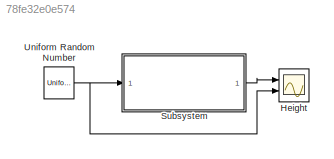
MODEL slx_78fe32e0e574
KIND model
CONFIG AbsTol = auto
CONFIG EnableMultiTasking = off
CONFIG FixedStep = 0.1
CONFIG MaxStep = auto
CONFIG MinStep = auto
CONFIG RelTol = 1e-3
CONFIG SampleTimeConstraint = Unconstrained
CONFIG SolverName = FixedStepAuto
CONFIG StartTime = 0.0
CONFIG StopTime = 100
BLOCK [Scope] Height
  Floating = off
  NumInputPorts = 2
  Ports = [2]
  ScopeSpecificationString = Simulink.scopes.TimeScopeBlockCfg('CurrentConfiguration', extmgr.ConfigurationSet(extmgr.Configuration('Core','General UI',true),extmgr.Configuration('Core','Source UI',true),extmgr.Configuration('Sources','WiredSimulink',true,'DataLoggingSaveFormat','StructureWithTime','DataLoggingLimitDataPoints',true,'DataLoggingDecimation','1','DataLoggingDecimateData',true),extmgr.Configuration('Visuals','Tim...<+1682ch>
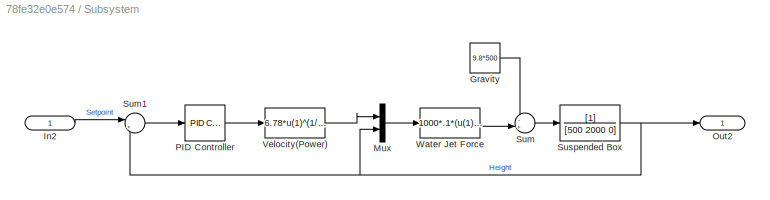
BLOCK [SubSystem] Subsystem
  Ports = [1, 1]
  RequestExecContextInheritance = off
BLOCK [Constant] Subsystem/Gravity
  Value = 9.8*500
BLOCK [Inport] Subsystem/In2
  IconDisplay = Signal name
BLOCK [Mux] Subsystem/Mux
  DisplayOption = bar
  Inputs = 2
  Ports = [2, 1]
BLOCK [Outport] Subsystem/Out2
  IconDisplay = Signal name
BLOCK [Reference] Subsystem/PID Controller  REF=slpidlib/PID Controller
  Ports = [1, 1]
  SourceBlock = slpidlib/PID Controller
  SourceProductBaseCode = SL
  SourceType = PID 1dof
BLOCK [Sum] Subsystem/Sum
  Inputs = -+|
  Ports = [2, 1]
BLOCK [Sum] Subsystem/Sum1
  Inputs = |+-
  Ports = [2, 1]
BLOCK [TransferFcn] Subsystem/Suspended Box
  Denominator = [500 2000 0]
BLOCK [Fcn] Subsystem/Velocity(Power)
  Expr = 6.78*u(1)^(1/3)
BLOCK [Fcn] Subsystem/Water Jet Force
  Expr = 1000*.1*(u(1)^2+2*(-9.8)*u(2))
BLOCK [UniformRandomNumber] Uniform Random Number
  Maximum = 200
  Minimum = 0
  SampleTime = 2
LINE Subsystem/Gravity:1 -> Subsystem/Sum:1
LINE Subsystem/In2:1 -> Subsystem/Sum1:1
LINE Subsystem/Mux:1 -> Subsystem/Water Jet Force:1
LINE Subsystem/PID Controller:1 -> Subsystem/Velocity(Power):1
LINE Subsystem/Sum1:1 -> Subsystem/PID Controller:1
LINE Subsystem/Sum:1 -> Subsystem/Suspended Box:1
NET Subsystem/Suspended Box:1 -> Subsystem/Mux:2, Subsystem/Out2:1, Subsystem/Sum1:2
LINE Subsystem/Velocity(Power):1 -> Subsystem/Mux:1
LINE Subsystem/Water Jet Force:1 -> Subsystem/Sum:2
LINE Subsystem:1 -> Height:1
NET Uniform Random Number:1 -> Height:2, Subsystem:1
note: NET lines group one-source signal fan-out (src -> all destinations, sorted); 1:1 wires keep LINE
